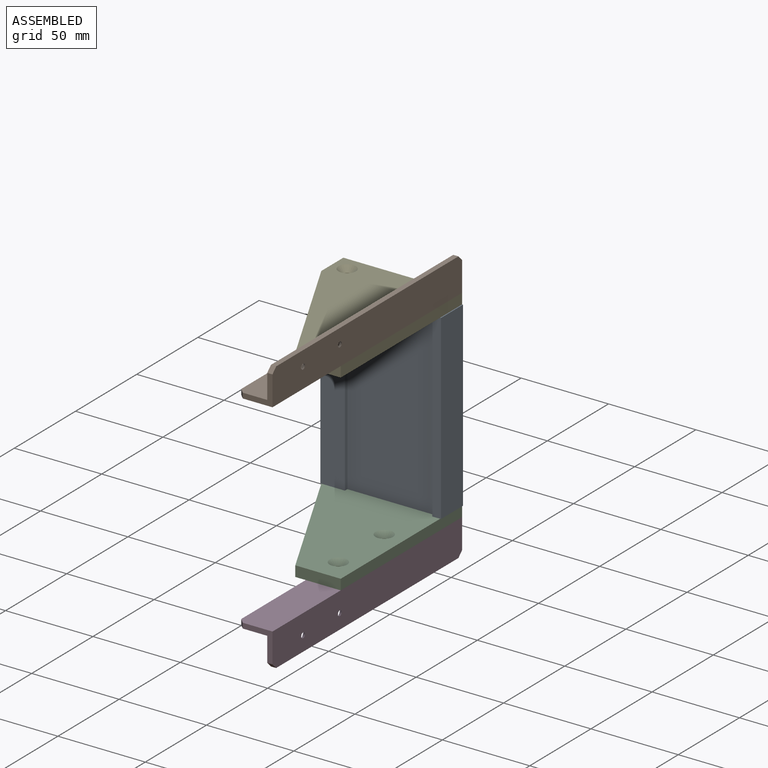
[diagram: assembled view]
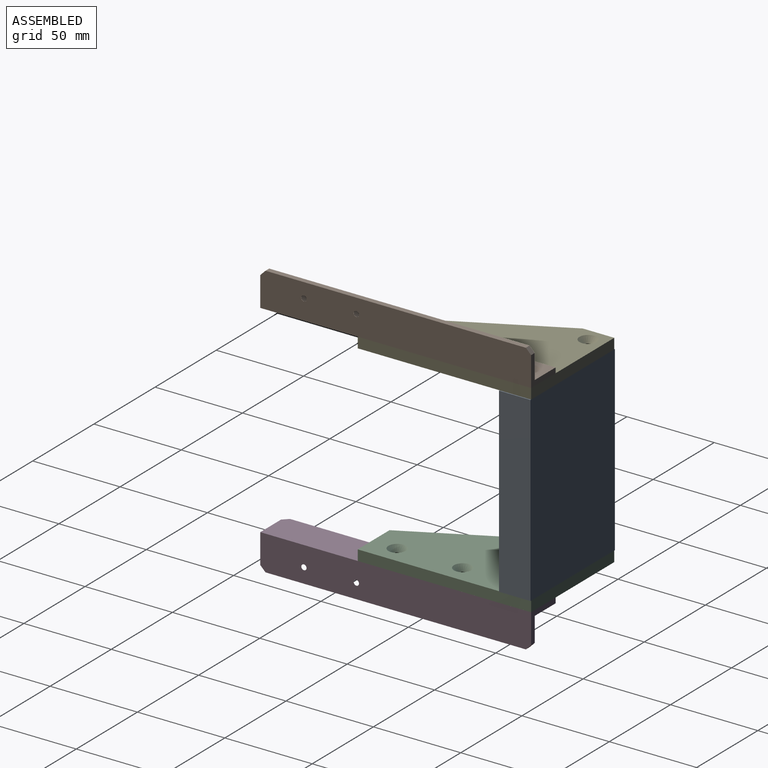
[diagram: assembled view, second angle]
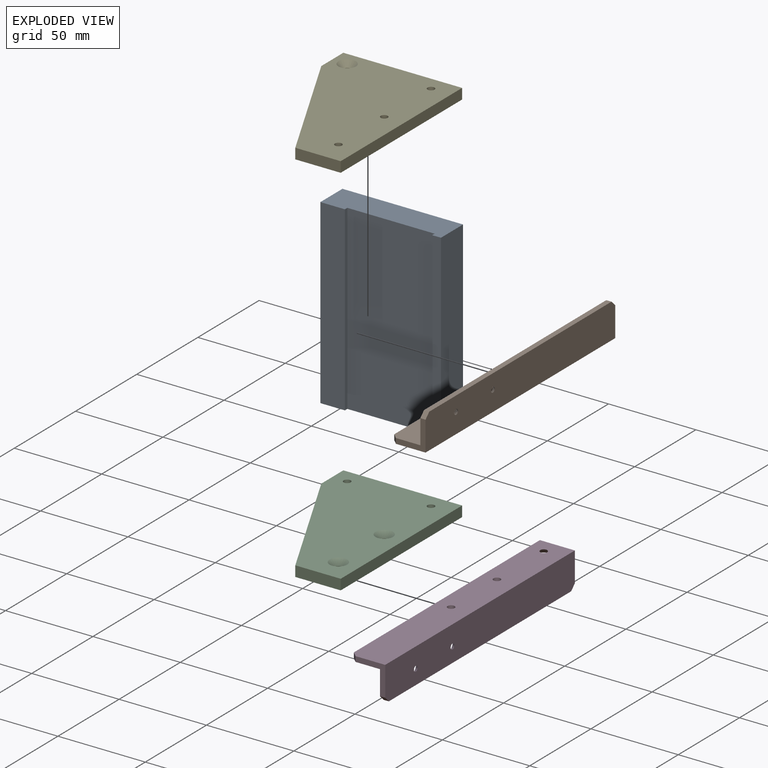
[diagram: exploded view]
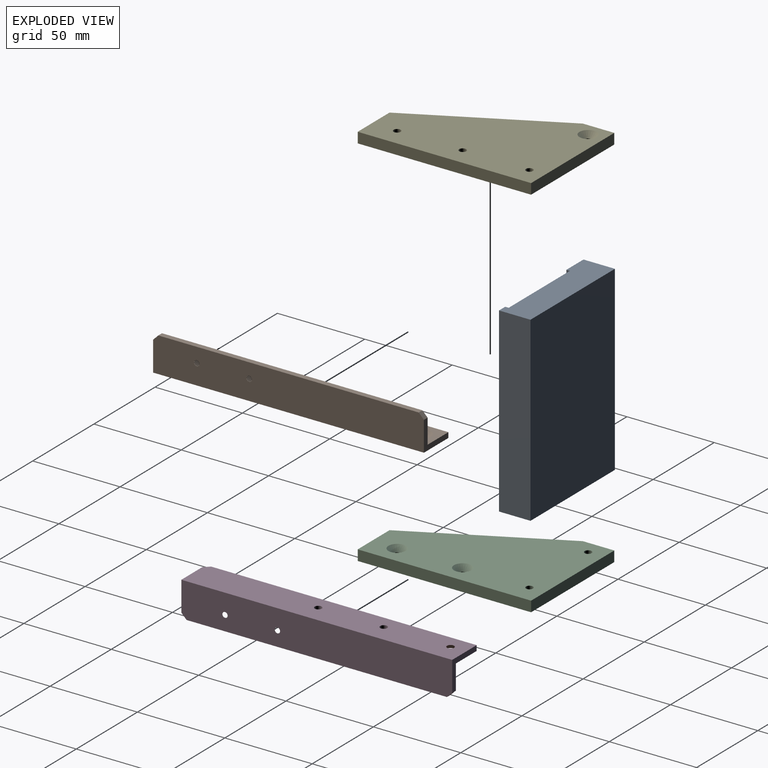
[diagram: exploded view, second angle]
ASSEMBLY  parts=5 mates=4
PART A: 10 faces, bbox 69x18x104 mm
  f0: plane 104x5mm, normal (0,-1,0), area 520mm2, adj f2,f4,f6,f7
  f1: plane 104x14mm, normal (0,-1,0), area 1456mm2, adj f2,f4,f5,f8
  f2: plane 69x18mm, normal (0,0,1), area 1142mm2, adj f0,f1,f3,f5,f6,f7,f8,f9
  f3: plane 104x69mm, normal (0,1,0), area 7176mm2, adj f2,f4,f5,f6
  f4: plane 69x18mm, normal (0,0,-1), area 1142mm2, adj f0,f1,f3,f5,f6,f7,f8,f9
  f5: plane 104x18mm, normal (-1,0,0), area 1872mm2, adj f1,f2,f3,f4
  f6: plane 104x18mm, normal (1,0,0), area 1872mm2, adj f0,f2,f3,f4
  f7: plane 104x2mm, normal (-1,0,0), area 208mm2, adj f0,f2,f4,f9
  f8: plane 104x2mm, normal (1,0,0), area 208mm2, adj f1,f2,f4,f9
  f9: plane 104x50mm, normal (0,-1,0), area 5200mm2, adj f2,f4,f7,f8
PART B: 16 faces, bbox 20x155x20 mm
  f0: plane 152x3mm, normal (-1,0,0), area 456mm2, adj f1,f5,f7,f13
  f1: plane 155x20mm, normal (0,0,-1), area 3057.8mm2, adj f0,f2,f6,f7,f8,f9,f10,f13
  f2: plane 155x20mm, normal (1,0,0), area 3076.9mm2, adj f1,f3,f6,f7,f11,f12,f14,f15
  f3: plane 149x3mm, normal (0,0,1), area 447mm2, adj f2,f4,f11,f12
  f4: plane 155x17mm, normal (-1,0,0), area 2498.8mm2, adj f3,f5,f6,f7,f11,f12,f14,f15
  f5: plane 155x17mm, normal (0,0,1), area 2526.8mm2, adj f0,f4,f6,f7,f8,f9,f10,f13
  f6: plane 17x17mm, normal (0,-1,0), area 93mm2, adj f1,f2,f4,f5,f12,f13
  f7: plane 20x17mm, normal (0,1,0), area 102mm2, adj f0,f1,f2,f4,f5,f11
  f8: cylinder r=2mm len=4mm, axis (0,0,-1), area 37.7mm2, adj f1,f5
  f9: cylinder r=2mm len=4mm, axis (0,0,-1), area 37.7mm2, adj f1,f5
  f10: cone r=2mm half-angle=45deg, axis (0,0,1), area 93.3mm2, adj f1,f5
  f11: plane 3x3mm, normal (0,0.71,0.71), area 12.7mm2, adj f2,f3,f4,f7
  f12: plane 3x3mm, normal (0,-0.71,0.71), area 12.7mm2, adj f2,f3,f4,f6
  f13: plane 3x3mm, normal (-0.71,-0.71,0), area 12.7mm2, adj f0,f1,f5,f6
  f14: cone r=1.5mm half-angle=45deg, axis (-1,0,0), area 80mm2, adj f2,f4
  f15: cone r=1.5mm half-angle=45deg, axis (-1,0,0), area 80mm2, adj f2,f4
PART C: 14 faces, bbox 68x99.2x6 mm
  f0: plane 81.24x42mm, normal (-0.89,-0.46,0), area 548.7mm2, adj f1,f4,f5,f6
  f1: plane 18x6mm, normal (-1,0,0), area 108mm2, adj f0,f2,f5,f6
  f2: plane 68x6mm, normal (0,1,0), area 408mm2, adj f1,f3,f5,f6
  f3: plane 99.24x6mm, normal (1,0,0), area 595.5mm2, adj f2,f4,f5,f6
  f4: plane 26x6mm, normal (0,-1,0), area 156mm2, adj f0,f3,f5,f6
  f5: plane 99.24x68mm, normal (0,0,-1), area 4926mm2, adj f0,f1,f2,f3,f4,f8,f9,f10
  f6: plane 99.24x68mm, normal (0,0,1), area 4860mm2, adj f0,f1,f2,f3,f4,f7,f8,f11
  f7: cylinder r=2mm len=4mm, axis (0,0,1), area 37.7mm2, adj f6,f13
  f8: cylinder r=2mm len=6mm, axis (0,0,1), area 75.4mm2, adj f5,f6
  f9: cylinder r=2mm len=4mm, axis (0,0,1), area 37.7mm2, adj f5,f12
  f10: cylinder r=2mm len=4mm, axis (0,0,1), area 37.7mm2, adj f5,f11
  f11: cone r=2mm half-angle=45deg, axis (0,0,1), area 93.3mm2, adj f6,f10
  f12: cone r=2mm half-angle=45deg, axis (0,0,1), area 93.3mm2, adj f6,f9
  f13: cone r=5mm half-angle=45deg, axis (0,0,-1), area 93.3mm2, adj f5,f7
PART D: 16 faces, bbox 20x155x20 mm
  f0: plane 152x3mm, normal (-1,0,0), area 456mm2, adj f1,f5,f7,f13
  f1: plane 155x20mm, normal (0,0,1), area 3057.8mm2, adj f0,f2,f6,f7,f8,f9,f10,f13
  f2: plane 155x20mm, normal (1,0,0), area 3076.9mm2, adj f1,f3,f6,f7,f11,f12,f14,f15
  f3: plane 149x3mm, normal (0,0,-1), area 447mm2, adj f2,f4,f11,f12
  f4: plane 155x17mm, normal (-1,0,0), area 2498.8mm2, adj f3,f5,f6,f7,f11,f12,f14,f15
  f5: plane 155x17mm, normal (0,0,-1), area 2526.8mm2, adj f0,f4,f6,f7,f8,f9,f10,f13
  f6: plane 17x17mm, normal (0,-1,0), area 93mm2, adj f1,f2,f4,f5,f12,f13
  f7: plane 20x17mm, normal (0,1,0), area 102mm2, adj f0,f1,f2,f4,f5,f11
  f8: cylinder r=2mm len=4mm, axis (0,0,1), area 37.7mm2, adj f1,f5
  f9: cylinder r=2mm len=4mm, axis (0,0,1), area 37.7mm2, adj f1,f5
  f10: cone r=2mm half-angle=45deg, axis (0,0,-1), area 93.3mm2, adj f1,f5
  f11: plane 3x3mm, normal (0,0.71,-0.71), area 12.7mm2, adj f2,f3,f4,f7
  f12: plane 3x3mm, normal (0,-0.71,-0.71), area 12.7mm2, adj f2,f3,f4,f6
  f13: plane 3x3mm, normal (-0.71,-0.71,0), area 12.7mm2, adj f0,f1,f5,f6
  f14: cone r=1.5mm half-angle=45deg, axis (-1,0,0), area 80mm2, adj f2,f4
  f15: cone r=1.5mm half-angle=45deg, axis (-1,0,0), area 80mm2, adj f2,f4
PART E: 14 faces, bbox 68x99.2x6 mm
  f0: plane 81.24x42mm, normal (-0.89,-0.46,0), area 548.7mm2, adj f1,f4,f5,f6
  f1: plane 18x6mm, normal (-1,0,0), area 108mm2, adj f0,f2,f5,f6
  f2: plane 68x6mm, normal (0,1,0), area 408mm2, adj f1,f3,f5,f6
  f3: plane 99.24x6mm, normal (1,0,0), area 595.5mm2, adj f2,f4,f5,f6
  f4: plane 26x6mm, normal (0,-1,0), area 156mm2, adj f0,f3,f5,f6
  f5: plane 99.24x68mm, normal (0,0,1), area 4926mm2, adj f0,f1,f2,f3,f4,f8,f9,f10
  f6: plane 99.24x68mm, normal (0,0,-1), area 4860mm2, adj f0,f1,f2,f3,f4,f7,f8,f11
  f7: cylinder r=2mm len=4mm, axis (0,0,-1), area 37.7mm2, adj f6,f13
  f8: cylinder r=2mm len=6mm, axis (0,0,-1), area 75.4mm2, adj f5,f6
  f9: cylinder r=2mm len=4mm, axis (0,0,-1), area 37.7mm2, adj f5,f12
  f10: cylinder r=2mm len=4mm, axis (0,0,-1), area 37.7mm2, adj f5,f11
  f11: cone r=2mm half-angle=45deg, axis (0,0,-1), area 93.3mm2, adj f6,f10
  f12: cone r=2mm half-angle=45deg, axis (0,0,-1), area 93.3mm2, adj f6,f9
  f13: cone r=5mm half-angle=45deg, axis (0,0,1), area 93.3mm2, adj f5,f7
PLACE A t=(-29.55,66.56,-120.23)mm
PLACE B t=(-33.05,66.56,122.57)mm
PLACE C t=(62.27,66.56,12.57)mm
PLACE D t=(-33.05,66.56,-259.04)mm
PLACE E t=(62.27,66.56,-149.04)mm
MATE fastened B.f2 <-> E.f3  axis (1,0,0) through (44.7,66.56,122.57)mm
MATE fastened D.f2 <-> C.f3  axis (1,0,0) through (44.7,66.56,6.57)mm
MATE fastened E.f6 <-> A.f2  axis (0,0,-1) through (10.7,66.56,116.57)mm
MATE fastened C.f6 <-> A.f4  axis (0,0,1) through (10.7,66.56,12.57)mm
